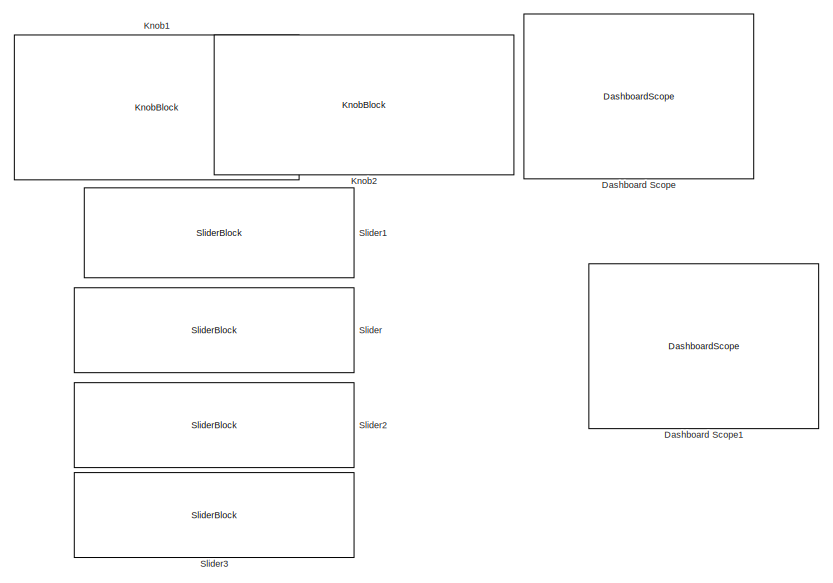
[diagram: root canvas - part 1/2, right side, full height]
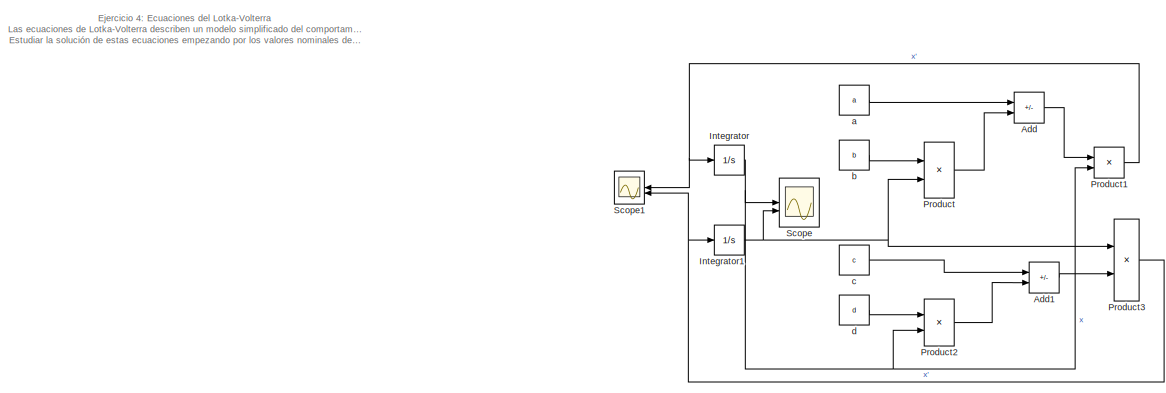
[diagram: root canvas - part 2/2, middle left region]
MODEL slx_47f6f4caae56
KIND model
CONFIG AbsTol = auto
CONFIG EnableMultiTasking = off
CONFIG FixedStep = auto
CONFIG MaxStep = auto
CONFIG MinStep = auto
CONFIG RelTol = 1e-3
CONFIG SampleTimeConstraint = Unconstrained
CONFIG SolverName = VariableStepAuto
CONFIG StartTime = 0.0
CONFIG StopTime = 10.0
WORKSPACE source: mxarray member
WORKSPACE a = 0.620196109442
WORKSPACE b = 0.468506025923
WORKSPACE c = 0.667399378458
WORKSPACE d = 0.443037974684
BLOCK [Sum] Add
  IconShape = rectangular
  Inputs = +-
BLOCK [Sum] Add1
  IconShape = rectangular
  Inputs = -+
BLOCK [DashboardScope] Dashboard Scope
BLOCK [DashboardScope] Dashboard Scope1
BLOCK [Integrator] Integrator
  InitialCondition = 5
BLOCK [Integrator] Integrator1
  InitialCondition = 5
BLOCK [KnobBlock] Knob1
BLOCK [KnobBlock] Knob2
BLOCK [Product] Product
BLOCK [Product] Product1
BLOCK [Product] Product2
BLOCK [Product] Product3
BLOCK [Scope] Scope
  Floating = off
  NumInputPorts = 2
  ScopeSpecificationString = Simulink.scopes.TimeScopeBlockCfg('CurrentConfiguration', extmgr.ConfigurationSet(extmgr.Configuration('Core','General UI',true),extmgr.Configuration('Core','Source UI',true),extmgr.Configuration('Sources','WiredSimulink',true),extmgr.Configuration('Visuals','Time Domain',true,'SerializedDisplays',{struct('MinYLimReal','-11.71242','MaxYLimReal','105.4118','YLabelReal','','MinYLimMag','0.00000','Ma...<+1369ch>
BLOCK [Scope] Scope1
  Floating = off
  NumInputPorts = 2
  ScopeSpecificationString = Simulink.scopes.TimeScopeBlockCfg('CurrentConfiguration', extmgr.ConfigurationSet(extmgr.Configuration('Core','General UI',true),extmgr.Configuration('Core','Source UI',true),extmgr.Configuration('Sources','WiredSimulink',true,'DataLoggingVariableName','ScopeData1'),extmgr.Configuration('Visuals','Time Domain',true,'SerializedDisplays',{struct('MinYLimReal','-48.5851','MaxYLimReal','165.18229','YL...<+1376ch>
BLOCK [SliderBlock] Slider
  ScaleMax = 1
BLOCK [SliderBlock] Slider1
  ScaleMax = 1
BLOCK [SliderBlock] Slider2
  ScaleMax = 1
BLOCK [SliderBlock] Slider3
  ScaleMax = 1
BLOCK [Constant] a
  Value = a
BLOCK [Constant] b
  Value = b
BLOCK [Constant] c
  Value = c
BLOCK [Constant] d
  Value = d
ANNOTATION (root): E jercicio 4: Ecuaciones del Lotka-Volterra Las ecuaciones de Lotka-Volterra describen un modelo simplificado del comportamiento de dos especies enfrentadas (a menudo se conoce este modelo como de "presas y depredadores"). Estudiar la solución de estas ecuaciones empezando por los valores nominales de los parámetros:
LINE Add1:1 -> Product3:2
LINE Add:1 -> Product1:1
NET Integrator1:1 -> Product3:1, Product:2, Scope:2
NET Integrator:1 -> Product1:2, Product2:2, Scope:1
NET Product1:1 -> Integrator:1, Scope1:1
LINE Product2:1 -> Add1:2
NET Product3:1 -> Integrator1:1, Scope1:2
LINE Product:1 -> Add:2
LINE a:1 -> Add:1
LINE b:1 -> Product:1
LINE c:1 -> Add1:1
LINE d:1 -> Product2:1
note: NET lines group one-source signal fan-out (src -> all destinations, sorted); 1:1 wires keep LINE
